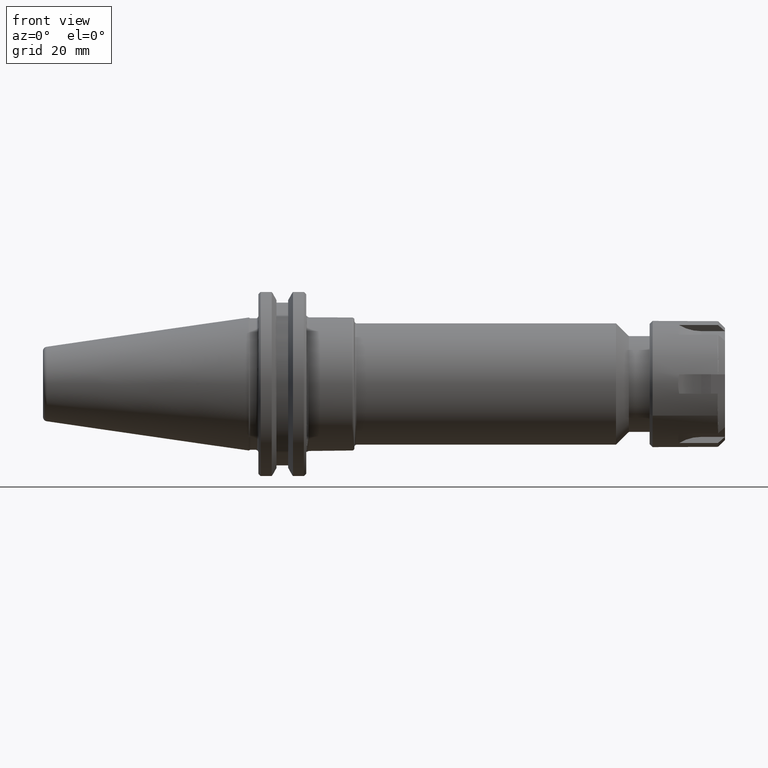
[diagram: clean part render]
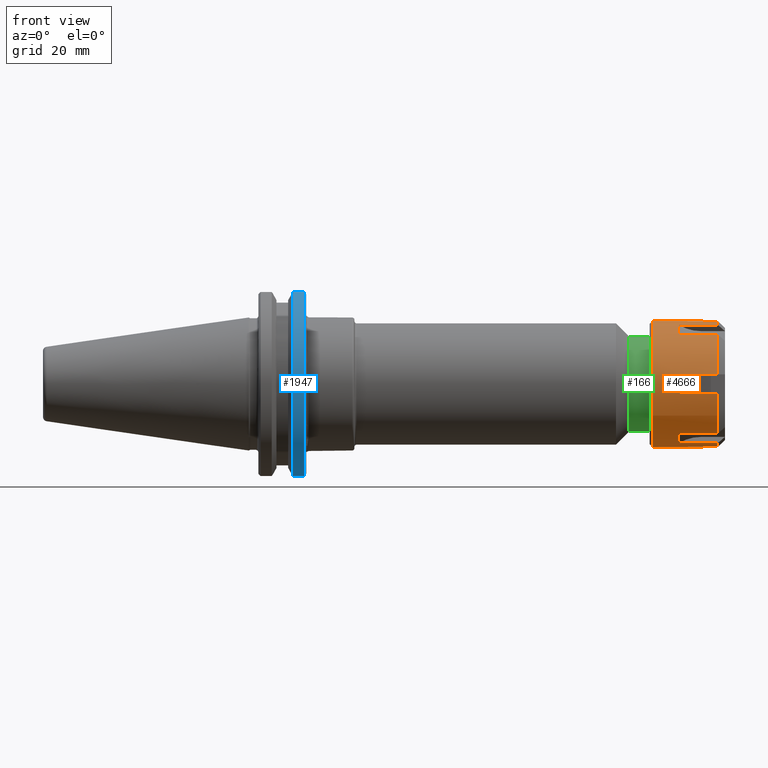
[diagram: same view with three faces highlighted in distinct colors, each labeled with its STEP entity id]
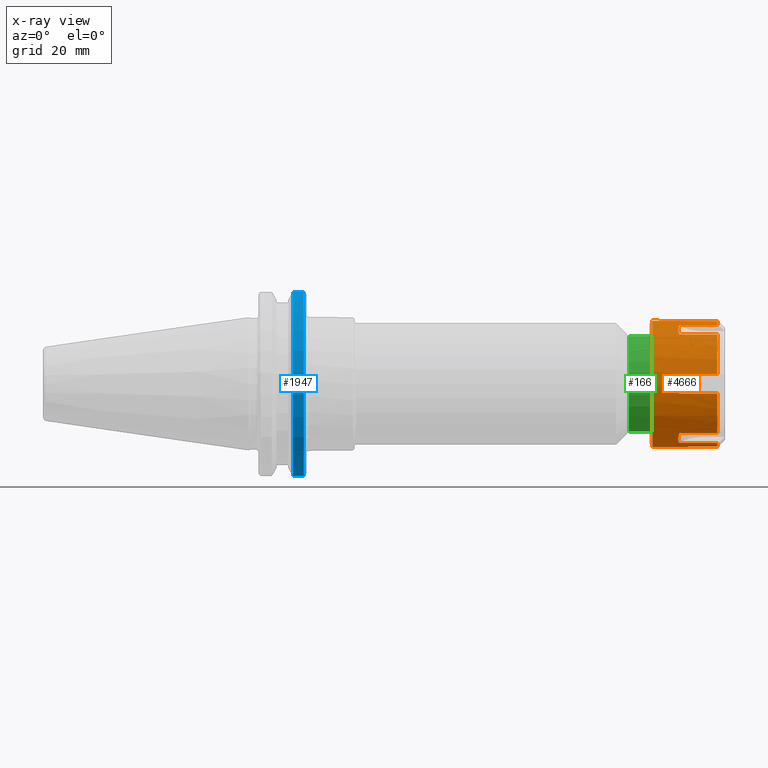
[diagram: x-ray of the same camera — body ghosted, the three highlighted faces saturated]
A machine part, front view with three faces highlighted in distinct colors.
The next image is the same camera in x-ray (body ghosted, the three faces saturated) — at least one of them is partly hidden behind the body in this view.
Their STEP definitions:

[orange] entity #4666 — the highlighted cylindrical surface (bore or boss wall) has radius 21 mm, axis along (-1, 0, -0).
#3215=CARTESIAN_POINT('',(15.196544516299731,19.574148102205015,7.606097953152043));
#3216=VERTEX_POINT('',#3215);
#3224=CARTESIAN_POINT('',(2.507106781186548,19.574148102205019,7.606097953152041));
#3225=VERTEX_POINT('',#3224);
#3226=CARTESIAN_POINT('',(2.507106781186549,19.574148102205019,7.606097953152041));
#3227=DIRECTION('',(1.0,0.0,0.0));
#3228=VECTOR('',#3227,12.689437735113183);
#3229=LINE('',#3226,#3228);
#3230=EDGE_CURVE('',#3225,#3216,#3229,.T.);
#3268=CARTESIAN_POINT('',(2.507106781186548,16.374148102205023,13.148660537372454));
#3269=VERTEX_POINT('',#3268);
#3281=CARTESIAN_POINT('',(15.19654451629882,16.374148102204451,13.148660537372132));
#3282=VERTEX_POINT('',#3281);
#3283=CARTESIAN_POINT('',(15.19654451629882,16.374148102205023,13.148660537372454));
#3284=DIRECTION('',(-1.0,0.0,0.0));
#3285=VECTOR('',#3284,12.689437735112271);
#3286=LINE('',#3283,#3285);
#3287=EDGE_CURVE('',#3282,#3269,#3286,.T.);
#3320=CARTESIAN_POINT('',(15.529350621968065,18.186533479473223,10.499999999999986));
#3321=VERTEX_POINT('',#3320);
#3322=CARTESIAN_POINT('',(15.52935062196806,18.186533479473223,10.499999999999982));
#3323=CARTESIAN_POINT('',(15.52935062196806,17.760499016109552,11.237913336321201));
#3324=CARTESIAN_POINT('',(15.461041509948872,17.274819215845071,11.972430362791764));
#3325=CARTESIAN_POINT('',(15.278878266307576,16.626375515269729,12.829859753661008));
#3326=CARTESIAN_POINT('',(15.239945973779463,16.501135034791798,12.99052254032625));
#3327=CARTESIAN_POINT('',(15.196544516299673,16.374148102204842,13.148660537372677));
#3328=B_SPLINE_CURVE_WITH_KNOTS('',3,(#3322,#3323,#3324,#3325,#3326,#3327),.UNSPECIFIED.,.F.,.U.,(4,2,4),(0.0,0.255620678018202,0.315531952437123),.UNSPECIFIED.);
#3329=EDGE_CURVE('',#3321,#3282,#3328,.T.);
#3331=CARTESIAN_POINT('',(15.196544516299731,19.574148102205019,7.606097953152043));
#3332=CARTESIAN_POINT('',(15.239945974840065,19.50069004395769,7.795140865863639));
#3333=CARTESIAN_POINT('',(15.278878267535909,19.424172228476021,7.98393369893016));
#3334=CARTESIAN_POINT('',(15.46104150994887,19.005838447140359,8.974217105309492));
#3335=CARTESIAN_POINT('',(15.529350621968064,18.61256794283689,9.762086663678764));
#3336=CARTESIAN_POINT('',(15.529350621968064,18.186533479473219,10.499999999999982));
#3337=B_SPLINE_CURVE_WITH_KNOTS('',3,(#3331,#3332,#3333,#3334,#3335,#3336),.UNSPECIFIED.,.F.,.U.,(4,2,4),(-0.315531950309475,-0.255620678018202,0.0),.UNSPECIFIED.);
#3338=EDGE_CURVE('',#3216,#3321,#3337,.T.);
#3406=CARTESIAN_POINT('',(15.196544516299735,16.374148102205005,-13.148660537372479));
#3407=VERTEX_POINT('',#3406);
#3415=CARTESIAN_POINT('',(2.507106781186548,16.374148102205005,-13.148660537372477));
#3416=VERTEX_POINT('',#3415);
#3417=CARTESIAN_POINT('',(2.507106781186549,16.374148102205005,-13.148660537372477));
#3418=DIRECTION('',(1.0,0.0,0.0));
#3419=VECTOR('',#3418,12.689437735113186);
#3420=LINE('',#3417,#3419);
#3421=EDGE_CURVE('',#3416,#3407,#3420,.T.);
#3459=CARTESIAN_POINT('',(2.507106781186548,19.574148102205008,-7.606097953152068));
#3460=VERTEX_POINT('',#3459);
#3472=CARTESIAN_POINT('',(15.196544516299745,19.574148102205008,-7.606097953152073));
#3473=VERTEX_POINT('',#3472);
#3474=CARTESIAN_POINT('',(15.196544516299745,19.574148102205008,-7.606097953152068));
#3475=DIRECTION('',(-1.0,0.0,0.0));
#3476=VECTOR('',#3475,12.689437735113197);
#3477=LINE('',#3474,#3476);
#3478=EDGE_CURVE('',#3473,#3460,#3477,.T.);
#3511=CARTESIAN_POINT('',(15.529350621968065,18.186533479473205,-10.500000000000009));
#3512=VERTEX_POINT('',#3511);
#3513=CARTESIAN_POINT('',(15.529350621968065,18.186533479473209,-10.500000000000009));
#3514=CARTESIAN_POINT('',(15.529350621968065,18.612567942836879,-9.762086663678792));
#3515=CARTESIAN_POINT('',(15.461041509948872,19.005838447140352,-8.974217105309519));
#3516=CARTESIAN_POINT('',(15.278878266307592,19.424172231296822,-7.983933692252748));
#3517=CARTESIAN_POINT('',(15.239945973779502,19.500690045752723,-7.795140861244162));
#3518=CARTESIAN_POINT('',(15.196544516299737,19.574148102205008,-7.606097953152075));
#3519=B_SPLINE_CURVE_WITH_KNOTS('',3,(#3513,#3514,#3515,#3516,#3517,#3518),.UNSPECIFIED.,.F.,.U.,(4,2,4),(0.0,0.255620678018202,0.315531952437094),.UNSPECIFIED.);
#3520=EDGE_CURVE('',#3512,#3473,#3519,.T.);
#3522=CARTESIAN_POINT('',(15.196544516299735,16.374148102205005,-13.148660537372477));
#3523=CARTESIAN_POINT('',(15.239945974840072,16.50113503789499,-12.990522536461812));
#3524=CARTESIAN_POINT('',(15.278878267535914,16.626375519642199,-12.829859747879336));
#3525=CARTESIAN_POINT('',(15.461041509948874,17.27481921584506,-11.97243036279178));
#3526=CARTESIAN_POINT('',(15.529350621968064,17.760499016109538,-11.237913336321219));
#3527=CARTESIAN_POINT('',(15.529350621968064,18.186533479473205,-10.500000000000007));
#3528=B_SPLINE_CURVE_WITH_KNOTS('',3,(#3522,#3523,#3524,#3525,#3526,#3527),.UNSPECIFIED.,.F.,.U.,(4,2,4),(-0.315531950309475,-0.255620678018201,0.0),.UNSPECIFIED.);
#3529=EDGE_CURVE('',#3407,#3512,#3528,.T.);
#3597=CARTESIAN_POINT('',(15.196544516299738,-3.200000000000003,-20.754758490524527));
#3598=VERTEX_POINT('',#3597);
#3606=CARTESIAN_POINT('',(2.507106781186548,-3.200000000000004,-20.754758490524527));
#3607=VERTEX_POINT('',#3606);
#3608=CARTESIAN_POINT('',(2.507106781186549,-3.200000000000004,-20.754758490524527));
#3609=DIRECTION('',(1.0,0.0,0.0));
#3610=VECTOR('',#3609,12.68943773511319);
#3611=LINE('',#3608,#3610);
#3612=EDGE_CURVE('',#3607,#3598,#3611,.T.);
#3650=CARTESIAN_POINT('',(2.507106781186548,3.199999999999996,-20.754758490524527));
#3651=VERTEX_POINT('',#3650);
#3663=CARTESIAN_POINT('',(15.196544516299744,3.199999999999998,-20.754758490524537));
#3664=VERTEX_POINT('',#3663);
#3665=CARTESIAN_POINT('',(15.196544516299744,3.199999999999996,-20.754758490524527));
#3666=DIRECTION('',(-1.0,0.0,0.0));
#3667=VECTOR('',#3666,12.689437735113195);
#3668=LINE('',#3665,#3667);
#3669=EDGE_CURVE('',#3664,#3651,#3668,.T.);
#3702=CARTESIAN_POINT('',(15.529350621968065,-3.497203E-015,-21.0));
#3703=VERTEX_POINT('',#3702);
#3704=CARTESIAN_POINT('',(15.52935062196806,-3.885781E-015,-21.0));
#3705=CARTESIAN_POINT('',(15.52935062196806,0.852068926727335,-21.0));
#3706=CARTESIAN_POINT('',(15.461041509948865,1.731019231295285,-20.946647468101286));
#3707=CARTESIAN_POINT('',(15.278878266307586,2.797796716027043,-20.813793445913682));
#3708=CARTESIAN_POINT('',(15.239945973779497,2.999555010960814,-20.785663401570265));
#3709=CARTESIAN_POINT('',(15.196544516299731,3.199999999999994,-20.754758490524527));
#3710=B_SPLINE_CURVE_WITH_KNOTS('',3,(#3704,#3705,#3706,#3707,#3708,#3709),.UNSPECIFIED.,.F.,.U.,(4,2,4),(0.0,0.255620678018202,0.315531952437095),.UNSPECIFIED.);
#3711=EDGE_CURVE('',#3703,#3664,#3710,.T.);
#3713=CARTESIAN_POINT('',(15.196544516299731,-3.200000000000001,-20.754758490524527));
#3714=CARTESIAN_POINT('',(15.239945974840069,-2.999555006062687,-20.785663402325465));
#3715=CARTESIAN_POINT('',(15.278878267535902,-2.797796708833806,-20.813793446809505));
#3716=CARTESIAN_POINT('',(15.461041509948865,-1.731019231295287,-20.946647468101283));
#3717=CARTESIAN_POINT('',(15.529350621968058,-0.85206892672734,-21.0));
#3718=CARTESIAN_POINT('',(15.529350621968058,-3.053113E-015,-21.0));
#3719=B_SPLINE_CURVE_WITH_KNOTS('',3,(#3713,#3714,#3715,#3716,#3717,#3718),.UNSPECIFIED.,.F.,.U.,(4,2,4),(-0.315531950309475,-0.255620678018201,0.0),.UNSPECIFIED.);
#3720=EDGE_CURVE('',#3598,#3703,#3719,.T.);
#3788=CARTESIAN_POINT('',(15.196544516299744,-19.574148102205019,-7.606097953152057));
#3789=VERTEX_POINT('',#3788);
#3797=CARTESIAN_POINT('',(2.507106781186548,-19.574148102205015,-7.606097953152053));
#3798=VERTEX_POINT('',#3797);
#3799=CARTESIAN_POINT('',(2.507106781186549,-19.574148102205015,-7.606097953152053));
#3800=DIRECTION('',(1.0,0.0,0.0));
#3801=VECTOR('',#3800,12.689437735113195);
#3802=LINE('',#3799,#3801);
#3803=EDGE_CURVE('',#3798,#3789,#3802,.T.);
#3841=CARTESIAN_POINT('',(2.507106781186548,-16.374148102205012,-13.148660537372464));
#3842=VERTEX_POINT('',#3841);
#3854=CARTESIAN_POINT('',(15.196544516299737,-16.374148102205016,-13.148660537372464));
#3855=VERTEX_POINT('',#3854);
#3856=CARTESIAN_POINT('',(15.196544516299737,-16.374148102205012,-13.148660537372464));
#3857=DIRECTION('',(-1.0,0.0,0.0));
#3858=VECTOR('',#3857,12.689437735113188);
#3859=LINE('',#3856,#3858);
#3860=EDGE_CURVE('',#3855,#3842,#3859,.T.);
#3893=CARTESIAN_POINT('',(15.529350621968065,-18.186533479473216,-10.499999999999993));
#3894=VERTEX_POINT('',#3893);
#3895=CARTESIAN_POINT('',(15.529350621968064,-18.186533479473216,-10.499999999999993));
#3896=CARTESIAN_POINT('',(15.529350621968064,-17.760499016109545,-11.23791333632121));
#3897=CARTESIAN_POINT('',(15.461041509948867,-17.274819215845067,-11.972430362791771));
#3898=CARTESIAN_POINT('',(15.278878266307586,-16.626375515269778,-12.829859753660939));
#3899=CARTESIAN_POINT('',(15.2399459737795,-16.501135034791908,-12.990522540326111));
#3900=CARTESIAN_POINT('',(15.196544516299735,-16.374148102205016,-13.148660537372464));
#3901=B_SPLINE_CURVE_WITH_KNOTS('',3,(#3895,#3896,#3897,#3898,#3899,#3900),.UNSPECIFIED.,.F.,.U.,(4,2,4),(0.0,0.255620678018202,0.315531952437095),.UNSPECIFIED.);
#3902=EDGE_CURVE('',#3894,#3855,#3901,.T.);
#3904=CARTESIAN_POINT('',(15.196544516299735,-19.574148102205015,-7.606097953152057));
#3905=CARTESIAN_POINT('',(15.239945974840072,-19.500690043957686,-7.795140865863655));
#3906=CARTESIAN_POINT('',(15.278878267535912,-19.424172228476021,-7.983933698930175));
#3907=CARTESIAN_POINT('',(15.46104150994887,-19.005838447140356,-8.974217105309505));
#3908=CARTESIAN_POINT('',(15.529350621968064,-18.612567942836883,-9.762086663678778));
#3909=CARTESIAN_POINT('',(15.529350621968064,-18.186533479473216,-10.499999999999996));
#3910=B_SPLINE_CURVE_WITH_KNOTS('',3,(#3904,#3905,#3906,#3907,#3908,#3909),.UNSPECIFIED.,.F.,.U.,(4,2,4),(-0.315531950309475,-0.255620678018202,0.0),.UNSPECIFIED.);
#3911=EDGE_CURVE('',#3789,#3894,#3910,.T.);
#3979=CARTESIAN_POINT('',(15.196544516299735,-16.374148102205009,13.148660537372471));
#3980=VERTEX_POINT('',#3979);
#3988=CARTESIAN_POINT('',(2.507106781186548,-16.374148102205009,13.14866053737247));
#3989=VERTEX_POINT('',#3988);
#3990=CARTESIAN_POINT('',(2.507106781186549,-16.374148102205009,13.14866053737247));
#3991=DIRECTION('',(1.0,0.0,0.0));
#3992=VECTOR('',#3991,12.689437735113186);
#3993=LINE('',#3990,#3992);
#3994=EDGE_CURVE('',#3989,#3980,#3993,.T.);
#4032=CARTESIAN_POINT('',(2.507106781186548,-19.574148102205008,7.606097953152062));
#4033=VERTEX_POINT('',#4032);
#4045=CARTESIAN_POINT('',(15.196544516299738,-19.574148102205012,7.606097953152064));
#4046=VERTEX_POINT('',#4045);
#4047=CARTESIAN_POINT('',(15.196544516299738,-19.574148102205008,7.606097953152062));
#4048=DIRECTION('',(-1.0,0.0,0.0));
#4049=VECTOR('',#4048,12.68943773511319);
#4050=LINE('',#4047,#4049);
#4051=EDGE_CURVE('',#4046,#4033,#4050,.T.);
#4084=CARTESIAN_POINT('',(15.529350621968065,-18.186533479473212,10.500000000000004));
#4085=VERTEX_POINT('',#4084);
#4086=CARTESIAN_POINT('',(15.529350621968067,-18.186533479473209,10.500000000000004));
#4087=CARTESIAN_POINT('',(15.529350621968067,-18.612567942836879,9.762086663678783));
#4088=CARTESIAN_POINT('',(15.461041509948881,-19.005838447140356,8.97421710530951));
#4089=CARTESIAN_POINT('',(15.278878266307601,-19.424172231296826,7.983933692252737));
#4090=CARTESIAN_POINT('',(15.239945973779502,-19.500690045752723,7.795140861244152));
#4091=CARTESIAN_POINT('',(15.196544516299737,-19.574148102205008,7.606097953152064));
#4092=B_SPLINE_CURVE_WITH_KNOTS('',3,(#4086,#4087,#4088,#4089,#4090,#4091),.UNSPECIFIED.,.F.,.U.,(4,2,4),(0.0,0.255620678018202,0.315531952437095),.UNSPECIFIED.);
#4093=EDGE_CURVE('',#4085,#4046,#4092,.T.);
#4095=CARTESIAN_POINT('',(15.196544516299735,-16.374148102205005,13.14866053737247));
#4096=CARTESIAN_POINT('',(15.239945974840071,-16.50113503789499,12.990522536461809));
#4097=CARTESIAN_POINT('',(15.278878267535909,-16.626375519642199,12.829859747879333));
#4098=CARTESIAN_POINT('',(15.46104150994887,-17.27481921584506,11.97243036279178));
#4099=CARTESIAN_POINT('',(15.529350621968071,-17.760499016109538,11.23791333632122));
#4100=CARTESIAN_POINT('',(15.529350621968071,-18.186533479473209,10.500000000000004));
#4101=B_SPLINE_CURVE_WITH_KNOTS('',3,(#4095,#4096,#4097,#4098,#4099,#4100),.UNSPECIFIED.,.F.,.U.,(4,2,4),(-0.315531950309475,-0.255620678018202,0.0),.UNSPECIFIED.);
#4102=EDGE_CURVE('',#3980,#4085,#4101,.T.);
#4344=CARTESIAN_POINT('',(2.507106781186548,-3.200000000000001,20.754758490524527));
#4345=VERTEX_POINT('',#4344);
#4346=CARTESIAN_POINT('',(2.507106781186548,0.0,0.0));
#4347=DIRECTION('',(1.0,0.0,0.0));
#4348=DIRECTION('',(0.0,1.0,0.0));
#4349=AXIS2_PLACEMENT_3D('',#4346,#4347,#4348);
#4350=CIRCLE('',#4349,21.0);
#4351=EDGE_CURVE('',#4345,#3989,#4350,.T.);
#4374=CARTESIAN_POINT('',(2.507106781186548,0.0,0.0));
#4375=DIRECTION('',(1.0,0.0,0.0));
#4376=DIRECTION('',(0.0,1.0,0.0));
#4377=AXIS2_PLACEMENT_3D('',#4374,#4375,#4376);
#4378=CIRCLE('',#4377,21.0);
#4379=EDGE_CURVE('',#4033,#3798,#4378,.T.);
#4392=CARTESIAN_POINT('',(2.507106781186548,0.0,0.0));
#4393=DIRECTION('',(1.0,0.0,0.0));
#4394=DIRECTION('',(0.0,1.0,0.0));
#4395=AXIS2_PLACEMENT_3D('',#4392,#4393,#4394);
#4396=CIRCLE('',#4395,21.0);
#4397=EDGE_CURVE('',#3842,#3607,#4396,.T.);
#4410=CARTESIAN_POINT('',(2.507106781186548,0.0,0.0));
#4411=DIRECTION('',(1.0,0.0,0.0));
#4412=DIRECTION('',(0.0,1.0,0.0));
#4413=AXIS2_PLACEMENT_3D('',#4410,#4411,#4412);
#4414=CIRCLE('',#4413,21.0);
#4415=EDGE_CURVE('',#3651,#3416,#4414,.T.);
#4428=CARTESIAN_POINT('',(2.507106781186548,0.0,0.0));
#4429=DIRECTION('',(1.0,0.0,0.0));
#4430=DIRECTION('',(0.0,1.0,0.0));
#4431=AXIS2_PLACEMENT_3D('',#4428,#4429,#4430);
#4432=CIRCLE('',#4431,21.0);
#4433=EDGE_CURVE('',#3460,#3225,#4432,.T.);
#4469=CARTESIAN_POINT('',(15.196544516299744,3.200000000000001,20.754758490524537));
#4470=VERTEX_POINT('',#4469);
#4478=CARTESIAN_POINT('',(2.507106781186548,3.200000000000001,20.754758490524527));
#4479=VERTEX_POINT('',#4478);
#4480=CARTESIAN_POINT('',(2.507106781186549,3.200000000000001,20.754758490524527));
#4481=DIRECTION('',(1.0,0.0,0.0));
#4482=VECTOR('',#4481,12.689437735113195);
#4483=LINE('',#4480,#4482);
#4484=EDGE_CURVE('',#4479,#4470,#4483,.T.);
#4507=CARTESIAN_POINT('',(15.196544516299744,-3.200000000000001,20.754758490524537));
#4508=VERTEX_POINT('',#4507);
#4509=CARTESIAN_POINT('',(15.196544516299744,-3.200000000000001,20.754758490524527));
#4510=DIRECTION('',(-1.0,0.0,0.0));
#4511=VECTOR('',#4510,12.689437735113195);
#4512=LINE('',#4509,#4511);
#4513=EDGE_CURVE('',#4508,#4345,#4512,.T.);
#4539=CARTESIAN_POINT('',(15.529350621968065,0.0,21.0));
#4540=VERTEX_POINT('',#4539);
#4541=CARTESIAN_POINT('',(15.529350621968065,2.775558E-016,21.0));
#4542=CARTESIAN_POINT('',(15.529350621968065,-0.852068926727339,21.0));
#4543=CARTESIAN_POINT('',(15.461041509948872,-1.73101923129529,20.946647468101286));
#4544=CARTESIAN_POINT('',(15.278878266307592,-2.797796716027049,20.813793445913682));
#4545=CARTESIAN_POINT('',(15.239945973779502,-2.999555010960821,20.785663401570261));
#4546=CARTESIAN_POINT('',(15.196544516299737,-3.199999999999999,20.754758490524527));
#4547=B_SPLINE_CURVE_WITH_KNOTS('',3,(#4541,#4542,#4543,#4544,#4545,#4546),.UNSPECIFIED.,.F.,.U.,(4,2,4),(0.0,0.255620678018202,0.315531952437095),.UNSPECIFIED.);
#4548=EDGE_CURVE('',#4540,#4508,#4547,.T.);
#4550=CARTESIAN_POINT('',(15.196544516299737,3.199999999999998,20.754758490524527));
#4551=CARTESIAN_POINT('',(15.239945974840074,2.999555006062685,20.785663402325465));
#4552=CARTESIAN_POINT('',(15.278878267535919,2.797796708833806,20.813793446809509));
#4553=CARTESIAN_POINT('',(15.461041509948878,1.731019231295286,20.946647468101286));
#4554=CARTESIAN_POINT('',(15.529350621968067,0.852068926727337,21.0));
#4555=CARTESIAN_POINT('',(15.529350621968067,0.0,21.0));
#4556=B_SPLINE_CURVE_WITH_KNOTS('',3,(#4550,#4551,#4552,#4553,#4554,#4555),.UNSPECIFIED.,.F.,.U.,(4,2,4),(-0.315531950309475,-0.255620678018201,0.0),.UNSPECIFIED.);
#4557=EDGE_CURVE('',#4470,#4540,#4556,.T.);
#4608=CARTESIAN_POINT('',(2.507106781186548,0.0,0.0));
#4609=DIRECTION('',(1.0,0.0,0.0));
#4610=DIRECTION('',(0.0,1.0,0.0));
#4611=AXIS2_PLACEMENT_3D('',#4608,#4609,#4610);
#4612=CIRCLE('',#4611,21.0);
#4613=EDGE_CURVE('',#3269,#4479,#4612,.T.);
#4618=CARTESIAN_POINT('',(13.253553390593273,0.0,0.0));
#4619=DIRECTION('',(1.0,0.0,0.0));
#4620=DIRECTION('',(0.0,1.0,0.0));
#4621=AXIS2_PLACEMENT_3D('',#4618,#4619,#4620);
#4622=CYLINDRICAL_SURFACE('',#4621,21.0);
#4623=ORIENTED_EDGE('',*,*,#3287,.T.);
#4624=ORIENTED_EDGE('',*,*,#4613,.T.);
#4625=ORIENTED_EDGE('',*,*,#4484,.T.);
#4626=ORIENTED_EDGE('',*,*,#4557,.T.);
#4627=ORIENTED_EDGE('',*,*,#4548,.T.);
#4628=ORIENTED_EDGE('',*,*,#4513,.T.);
#4629=ORIENTED_EDGE('',*,*,#4351,.T.);
#4630=ORIENTED_EDGE('',*,*,#3994,.T.);
#4631=ORIENTED_EDGE('',*,*,#4102,.T.);
#4632=ORIENTED_EDGE('',*,*,#4093,.T.);
#4633=ORIENTED_EDGE('',*,*,#4051,.T.);
#4634=ORIENTED_EDGE('',*,*,#4379,.T.);
#4635=ORIENTED_EDGE('',*,*,#3803,.T.);
#4636=ORIENTED_EDGE('',*,*,#3911,.T.);
#4637=ORIENTED_EDGE('',*,*,#3902,.T.);
#4638=ORIENTED_EDGE('',*,*,#3860,.T.);
#4639=ORIENTED_EDGE('',*,*,#4397,.T.);
#4640=ORIENTED_EDGE('',*,*,#3612,.T.);
#4641=ORIENTED_EDGE('',*,*,#3720,.T.);
#4642=ORIENTED_EDGE('',*,*,#3711,.T.);
#4643=ORIENTED_EDGE('',*,*,#3669,.T.);
#4644=ORIENTED_EDGE('',*,*,#4415,.T.);
#4645=ORIENTED_EDGE('',*,*,#3421,.T.);
#4646=ORIENTED_EDGE('',*,*,#3529,.T.);
#4647=ORIENTED_EDGE('',*,*,#3520,.T.);
#4648=ORIENTED_EDGE('',*,*,#3478,.T.);
#4649=ORIENTED_EDGE('',*,*,#4433,.T.);
#4650=ORIENTED_EDGE('',*,*,#3230,.T.);
#4651=ORIENTED_EDGE('',*,*,#3338,.T.);
#4652=ORIENTED_EDGE('',*,*,#3329,.T.);
#4653=EDGE_LOOP('',(#4623,#4624,#4625,#4626,#4627,#4628,#4629,#4630,#4631,#4632,#4633,#4634,#4635,#4636,#4637,#4638,#4639,#4640,#4641,#4642,#4643,#4644,#4645,#4646,#4647,#4648,#4649,#4650,#4651,#4652));
#4654=FACE_OUTER_BOUND('',#4653,.T.);
#4655=CARTESIAN_POINT('',(24.0,21.0,0.0));
#4656=VERTEX_POINT('',#4655);
#4657=CARTESIAN_POINT('',(24.0,0.0,0.0));
#4658=DIRECTION('',(1.0,0.0,0.0));
#4659=DIRECTION('',(0.0,1.0,0.0));
#4660=AXIS2_PLACEMENT_3D('',#4657,#4658,#4659);
#4661=CIRCLE('',#4660,21.0);
#4662=EDGE_CURVE('',#4656,#4656,#4661,.T.);
#4663=ORIENTED_EDGE('',*,*,#4662,.F.);
#4664=EDGE_LOOP('',(#4663));
#4665=FACE_BOUND('',#4664,.T.);
#4666=ADVANCED_FACE('',(#4654,#4665),#4622,.T.);

[blue] entity #1947 — the highlighted cylindrical surface (partial cylindrical patch) has radius 31.75 mm, axis along (1, 0, 0).
#1874=CARTESIAN_POINT('',(0.720000000000203,-0.34409810679788,-1.201705659842757));
#1875=VERTEX_POINT('',#1874);
#1889=CARTESIAN_POINT('',(0.577173872226652,-0.34409810679788,-1.201705659842757));
#1890=VERTEX_POINT('',#1889);
#1891=CARTESIAN_POINT('',(0.720000000000203,-0.34409810679788,-1.201705659842756));
#1892=DIRECTION('',(-1.0,0.0,0.0));
#1893=VECTOR('',#1892,0.142826127773552);
#1894=LINE('',#1891,#1893);
#1895=EDGE_CURVE('',#1875,#1890,#1894,.T.);
#1915=CARTESIAN_POINT('',(0.4375,0.0,0.0));
#1916=DIRECTION('',(1.0,0.0,0.0));
#1917=DIRECTION('',(-1.624514E-013,1.0,0.0));
#1918=AXIS2_PLACEMENT_3D('',#1915,#1916,#1917);
#1919=CYLINDRICAL_SURFACE('',#1918,1.25);
#1920=ORIENTED_EDGE('',*,*,#1895,.F.);
#1921=CARTESIAN_POINT('',(0.720000000000203,-0.344098106797854,1.201705659842764));
#1922=VERTEX_POINT('',#1921);
#1923=CARTESIAN_POINT('',(0.720000000000203,0.0,0.0));
#1924=DIRECTION('',(1.0,1.624514E-013,0.0));
#1925=DIRECTION('',(1.624514E-013,-1.0,0.0));
#1926=AXIS2_PLACEMENT_3D('',#1923,#1924,#1925);
#1927=CIRCLE('',#1926,1.25);
#1928=EDGE_CURVE('',#1922,#1875,#1927,.T.);
#1929=ORIENTED_EDGE('',*,*,#1928,.F.);
#1930=CARTESIAN_POINT('',(0.577173872226652,-0.344098106797854,1.201705659842764));
#1931=VERTEX_POINT('',#1930);
#1932=CARTESIAN_POINT('',(0.577173872226652,-0.344098106797854,1.201705659842764));
#1933=DIRECTION('',(1.0,0.0,0.0));
#1934=VECTOR('',#1933,0.142826127773552);
#1935=LINE('',#1932,#1934);
#1936=EDGE_CURVE('',#1931,#1922,#1935,.T.);
#1937=ORIENTED_EDGE('',*,*,#1936,.F.);
#1938=CARTESIAN_POINT('',(0.577173872226652,0.0,0.0));
#1939=DIRECTION('',(1.0,1.624514E-013,0.0));
#1940=DIRECTION('',(-1.624514E-013,1.0,0.0));
#1941=AXIS2_PLACEMENT_3D('',#1938,#1939,#1940);
#1942=CIRCLE('',#1941,1.25);
#1943=EDGE_CURVE('',#1931,#1890,#1942,.T.);
#1944=ORIENTED_EDGE('',*,*,#1943,.T.);
#1945=EDGE_LOOP('',(#1920,#1929,#1937,#1944));
#1946=FACE_OUTER_BOUND('',#1945,.T.);
#1947=ADVANCED_FACE('',(#1946),#1919,.T.);

[green] entity #166 — the highlighted cylindrical surface (bore or boss wall) has radius 16 mm, axis along (1, 0, 0).
#124=CARTESIAN_POINT('',(5.485000000000001,0.62992125984252,7.714311E-017));
#125=VERTEX_POINT('',#124);
#126=CARTESIAN_POINT('',(5.485000000000001,0.0,0.0));
#127=DIRECTION('',(1.0,0.0,0.0));
#128=DIRECTION('',(0.0,-1.0,0.0));
#129=AXIS2_PLACEMENT_3D('',#126,#127,#128);
#130=CIRCLE('',#129,0.62992125984252);
#131=EDGE_CURVE('',#125,#125,#130,.T.);
#147=CARTESIAN_POINT('',(5.245000000000001,0.0,0.0));
#148=DIRECTION('',(1.0,0.0,0.0));
#149=DIRECTION('',(0.0,1.0,0.0));
#150=AXIS2_PLACEMENT_3D('',#147,#148,#149);
#151=CYLINDRICAL_SURFACE('',#150,0.62992125984252);
#152=CARTESIAN_POINT('',(4.965000000000001,0.62992125984252,0.0));
#153=VERTEX_POINT('',#152);
#154=CARTESIAN_POINT('',(4.965000000000001,0.0,0.0));
#155=DIRECTION('',(1.0,0.0,0.0));
#156=DIRECTION('',(0.0,1.0,0.0));
#157=AXIS2_PLACEMENT_3D('',#154,#155,#156);
#158=CIRCLE('',#157,0.62992125984252);
#159=EDGE_CURVE('',#153,#153,#158,.T.);
#160=ORIENTED_EDGE('',*,*,#159,.T.);
#161=EDGE_LOOP('',(#160));
#162=FACE_OUTER_BOUND('',#161,.T.);
#163=ORIENTED_EDGE('',*,*,#131,.F.);
#164=EDGE_LOOP('',(#163));
#165=FACE_BOUND('',#164,.T.);
#166=ADVANCED_FACE('',(#162,#165),#151,.T.);